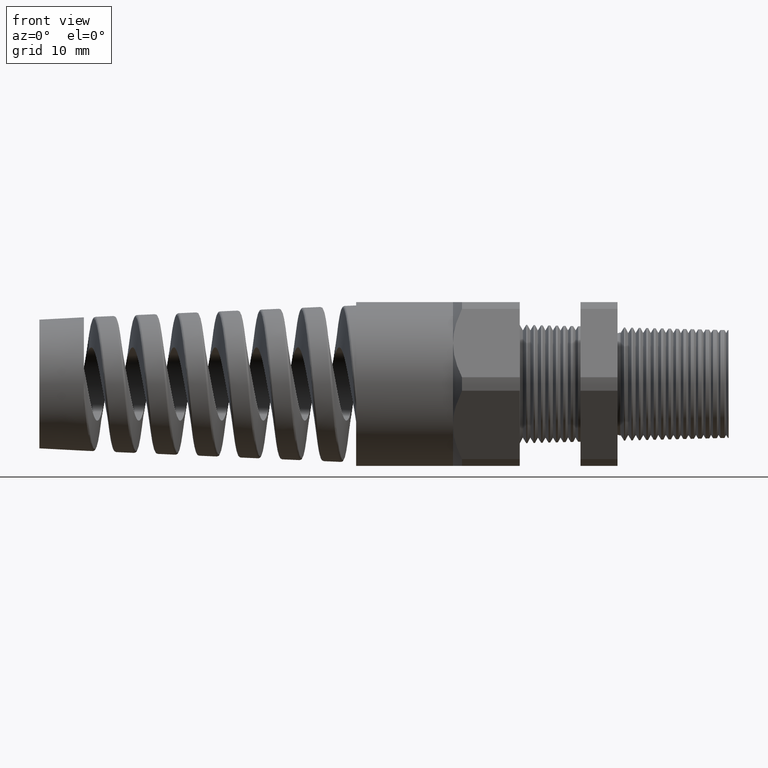
[diagram: clean part render]
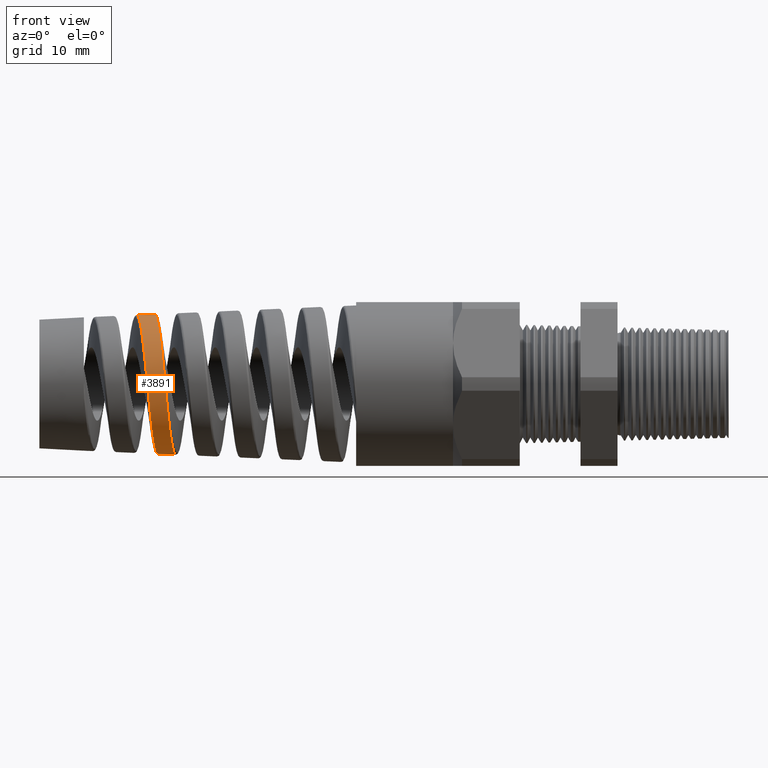
[diagram: same view with one face highlighted and labeled with its STEP entity id]
A machine part, front view. The second image highlights one B-rep face of the part: STEP entity #3891.
In plain terms, the highlighted conical surface has half-angle 2.5 deg.
Its self-contained STEP definition (entity closure, byte-faithful):
#3635 = VERTEX_POINT ( 'NONE', #14386 ) ;
#3652 = VERTEX_POINT ( 'NONE', #14419 ) ;
#3655 = EDGE_CURVE ( 'NONE', #3664, #3652, #3966, .T. ) ;
#3664 = VERTEX_POINT ( 'NONE', #3958 ) ;
#3668 = EDGE_CURVE ( 'NONE', #3635, #3671, #4012, .T. ) ;
#3671 = VERTEX_POINT ( 'NONE', #4008 ) ;
#3760 = ORIENTED_EDGE ( 'NONE', *, *, #3655, .F. ) ;
#3763 = ORIENTED_EDGE ( 'NONE', *, *, #12036, .T. ) ;
#3873 = EDGE_LOOP ( 'NONE', ( #3760, #3763, #12037, #12038 ) ) ;
#3891 = ADVANCED_FACE ( 'NONE', ( #4197 ), #4195, .T. ) ;
#3958 = CARTESIAN_POINT ( 'NONE',  ( -2.861495801255704600, 7.154155068480336400E-013, 0.3663870115404076500 ) ) ;
#3963 = DIRECTION ( 'NONE',  ( 0.9990482215818576900, 5.341834311772761000E-018, 0.04361938736533630500 ) ) ;
#3964 = VECTOR ( 'NONE', #3963, 39.37007874015748100 ) ;
#3965 = CARTESIAN_POINT ( 'NONE',  ( -1.289999999999999600, 5.327213576290984500E-017, 0.4349999999999998900 ) ) ;
#3966 = LINE ( 'NONE', #3965, #3964 ) ;
#4008 = CARTESIAN_POINT ( 'NONE',  ( -2.656960758943647700, 5.595973717578361500E-016, -0.3753172043455844700 ) ) ;
#4009 = DIRECTION ( 'NONE',  ( 0.9990482215818576900, 0.0000000000000000000, -0.04361938736533630500 ) ) ;
#4010 = VECTOR ( 'NONE', #4009, 39.37007874015748100 ) ;
#4011 = CARTESIAN_POINT ( 'NONE',  ( -1.289999999999999600, 0.0000000000000000000, -0.4349999999999998900 ) ) ;
#4012 = LINE ( 'NONE', #4011, #4010 ) ;
#4194 = AXIS2_PLACEMENT_3D ( 'NONE', #4222, #4221, #4220 ) ;
#4195 = CONICAL_SURFACE ( 'NONE', #4194, 0.4349999999999998900, 0.04363323129985854200 ) ;
#4197 = FACE_OUTER_BOUND ( 'NONE', #3873, .T. ) ;
#4220 = DIRECTION ( 'NONE',  ( 0.0000000000000000000, 0.0000000000000000000, -1.000000000000000000 ) ) ;
#4221 = DIRECTION ( 'NONE',  ( 1.000000000000000000, -0.0000000000000000000, -0.0000000000000000000 ) ) ;
#4222 = CARTESIAN_POINT ( 'NONE',  ( -1.289999999999999600, 0.0000000000000000000, 0.0000000000000000000 ) ) ;
#5265 = CARTESIAN_POINT ( 'NONE',  ( -2.770747915602111500, -0.1948358603979943300, -0.3151877148554140300 ) ) ;
#5266 = CARTESIAN_POINT ( 'NONE',  ( -2.774186545366478000, -0.2249298341201574600, -0.2950205798056346800 ) ) ;
#5267 = CARTESIAN_POINT ( 'NONE',  ( -2.776456175448985600, -0.2434917175350849200, -0.2797640778635222500 ) ) ;
#5268 = CARTESIAN_POINT ( 'NONE',  ( -2.779882802907268000, -0.2690837973965804500, -0.2541706006698406000 ) ) ;
#5269 = CARTESIAN_POINT ( 'NONE',  ( -2.781035140854073000, -0.2772742425249677400, -0.2451376651715808700 ) ) ;
#5270 = CARTESIAN_POINT ( 'NONE',  ( -2.783333390313078600, -0.2926781950646730700, -0.2263597366107085200 ) ) ;
#5271 = CARTESIAN_POINT ( 'NONE',  ( -2.784474342065694800, -0.2998632083385589000, -0.2166602569693063000 ) ) ;
#5272 = CARTESIAN_POINT ( 'NONE',  ( -2.787891567592645400, -0.3199096697037944200, -0.1866577092009769300 ) ) ;
#5273 = CARTESIAN_POINT ( 'NONE',  ( -2.790162399587702100, -0.3312767340283279100, -0.1654590542636336600 ) ) ;
#5274 = CARTESIAN_POINT ( 'NONE',  ( -2.793625311429903700, -0.3452403644999456100, -0.1318185883011236700 ) ) ;
#5275 = CARTESIAN_POINT ( 'NONE',  ( -2.794784674550151700, -0.3493524177402349600, -0.1203358504410384500 ) ) ;
#5276 = CARTESIAN_POINT ( 'NONE',  ( -2.797081733786627800, -0.3563661751303478500, -0.09724665816637058400 ) ) ;
#5277 = CARTESIAN_POINT ( 'NONE',  ( -2.798225308503656400, -0.3592925661599961600, -0.08558323064559129900 ) ) ;
#5278 = CARTESIAN_POINT ( 'NONE',  ( -2.800510091521818200, -0.3639989256173624700, -0.06202241514725637800 ) ) ;
#5279 = CARTESIAN_POINT ( 'NONE',  ( -2.801650967741250200, -0.3657789132128912400, -0.05012499870596321500 ) ) ;
#5280 = CARTESIAN_POINT ( 'NONE',  ( -2.803943348291209500, -0.3681738640876852700, -0.02609367961372205700 ) ) ;
#5281 = CARTESIAN_POINT ( 'NONE',  ( -2.805101087478020000, -0.3687870298348871500, -0.01389165841946190400 ) ) ;
#5282 = CARTESIAN_POINT ( 'NONE',  ( -2.808553610673270000, -0.3688103168499487500, 0.02249117416076407500 ) ) ;
#5283 = CARTESIAN_POINT ( 'NONE',  ( -2.810825733965141500, -0.3664555365706390100, 0.04642159747810495300 ) ) ;
#5284 = CARTESIAN_POINT ( 'NONE',  ( -2.815406759059369900, -0.3571121319136689200, 0.09363835624586676300 ) ) ;
#5285 = CARTESIAN_POINT ( 'NONE',  ( -2.817739267650365900, -0.3500010821819013500, 0.1171472933010744300 ) ) ;
#5286 = CARTESIAN_POINT ( 'NONE',  ( -2.822342034361600600, -0.3315570147500736500, 0.1616978826688049700 ) ) ;
#5287 = CARTESIAN_POINT ( 'NONE',  ( -2.824621462889489900, -0.3202421989128801900, 0.1828970200097563600 ) ) ;
#5288 = CARTESIAN_POINT ( 'NONE',  ( -2.828073160838694200, -0.3001037503978887800, 0.2130604927894367300 ) ) ;
#5289 = CARTESIAN_POINT ( 'NONE',  ( -2.829235614477089800, -0.2928167406139210400, 0.2228868307799908300 ) ) ;
#5290 = CARTESIAN_POINT ( 'NONE',  ( -2.831540510677245800, -0.2774437135026065500, 0.2416012281798667600 ) ) ;
#5291 = CARTESIAN_POINT ( 'NONE',  ( -2.832686211543703700, -0.2693439541275088300, 0.2505214782850535600 ) ) ;
#5292 = CARTESIAN_POINT ( 'NONE',  ( -2.836121729880495500, -0.2438334523247358800, 0.2759989922828046700 ) ) ;
#5293 = CARTESIAN_POINT ( 'NONE',  ( -2.838410130451646900, -0.2252233634660053600, 0.2912855820622128300 ) ) ;
#5294 = CARTESIAN_POINT ( 'NONE',  ( -2.843072507678288100, -0.1846661375024935300, 0.3183107542182486100 ) ) ;
#5295 = CARTESIAN_POINT ( 'NONE',  ( -2.845369750534951300, -0.1633865814843645200, 0.3296033629787110100 ) ) ;
#5296 = CARTESIAN_POINT ( 'NONE',  ( -2.848813767332549300, -0.1300499315247136400, 0.3433320972091241700 ) ) ;
#5297 = CARTESIAN_POINT ( 'NONE',  ( -2.849962333022176600, -0.1186986896393562400, 0.3473700038224926700 ) ) ;
#5298 = CARTESIAN_POINT ( 'NONE',  ( -2.852273209446292600, -0.09550818508399776300, 0.3543437037096132700 ) ) ;
#5299 = CARTESIAN_POINT ( 'NONE',  ( -2.853439010097355200, -0.08363169678879817100, 0.3572803422653248500 ) ) ;
#5300 = CARTESIAN_POINT ( 'NONE',  ( -2.856901117417229000, -0.04803306215833610900, 0.3642306900641886200 ) ) ;
#5301 = CARTESIAN_POINT ( 'NONE',  ( -2.859186292784778000, -0.02410922726855738500, 0.3664878468579503800 ) ) ;
#5302 = CARTESIAN_POINT ( 'NONE',  ( -2.861495801255704600, 7.154155068480336400E-013, 0.3663870115404076500 ) ) ;
#5303 = B_SPLINE_CURVE_WITH_KNOTS ( 'NONE', 3,
 ( #5302, #5301, #5300, #5299, #5298, #5297, #5296, #5295, #5294, #5293, #5292, #5291, #5290, #5289, #5288, #5287, #5286, #5285, #5284, #5283, #5282, #5281, #5280, #5279, #5278, #5277, #5276, #5275, #5274, #5273, #5272, #5271, #5270, #5269, #5268, #5267, #5266, #5265, #5346, #5345, #5344, #5343, #5342, #5341, #5340, #5339, #5338, #5337 ),
 .UNSPECIFIED., .F., .F.,
 ( 4, 2, 2, 2, 2, 2, 2, 2, 2, 2, 2, 2, 2, 2, 2, 2, 2, 2, 2, 2, 2, 2, 2, 4 ),
 ( 0.07441437654789442900, 0.07627331534617212700, 0.07720278474531097600, 0.07813225414444982500, 0.07999119294272752400, 0.08185013174100522200, 0.08277960114014407100, 0.08370907053928292000, 0.08556800933756061900, 0.08742694813583831700, 0.08928588693411601600, 0.09021535633325485100, 0.09114482573239370000, 0.09207429513153254900, 0.09300376453067138400, 0.09486270332894908300, 0.09579217272808793200, 0.09672164212722678100, 0.09858058092550448000, 0.09951005032464332900, 0.1004395197237821800, 0.1022984585220598800, 0.1032279279211987300, 0.1041573973203375600 ),
 .UNSPECIFIED. ) ;
#5306 = CARTESIAN_POINT ( 'NONE',  ( -2.727745013466824600, -0.3352738449704599800, 0.1635157735849435400 ) ) ;
#5307 = CARTESIAN_POINT ( 'NONE',  ( -2.723170824933026900, -0.3539078690607886400, 0.1185069480728030000 ) ) ;
#5308 = CARTESIAN_POINT ( 'NONE',  ( -2.720844905065487500, -0.3611047282356909500, 0.09472859285375620500 ) ) ;
#5309 = CARTESIAN_POINT ( 'NONE',  ( -2.716264365525855200, -0.3705602578963715900, 0.04694965984738019800 ) ) ;
#5310 = CARTESIAN_POINT ( 'NONE',  ( -2.713994090207154700, -0.3729364931907874800, 0.02276115389516955200 ) ) ;
#5311 = CARTESIAN_POINT ( 'NONE',  ( -2.710555691924849200, -0.3729164904195216800, -0.01397138756176598100 ) ) ;
#5312 = CARTESIAN_POINT ( 'NONE',  ( -2.709400097903389000, -0.3722982838959545400, -0.02632640449807722300 ) ) ;
#5313 = CARTESIAN_POINT ( 'NONE',  ( -2.707113519344943200, -0.3698748979147987200, -0.05065711639808107000 ) ) ;
#5314 = CARTESIAN_POINT ( 'NONE',  ( -2.705976664530537900, -0.3680733818535009100, -0.06269567287291892600 ) ) ;
#5315 = CARTESIAN_POINT ( 'NONE',  ( -2.702566979197425800, -0.3609334181750495400, -0.09843652771250033200 ) ) ;
#5316 = CARTESIAN_POINT ( 'NONE',  ( -2.700286744542923500, -0.3538428718973376500, -0.1218478039224828300 ) ) ;
#5317 = CARTESIAN_POINT ( 'NONE',  ( -2.695673300443827400, -0.3349887236293154200, -0.1672862730259803700 ) ) ;
#5318 = CARTESIAN_POINT ( 'NONE',  ( -2.693399165846702000, -0.3234848805171713400, -0.1887324041355051800 ) ) ;
#5319 = CARTESIAN_POINT ( 'NONE',  ( -2.689988722979276900, -0.3032249581109116000, -0.2190548681217996100 ) ) ;
#5320 = CARTESIAN_POINT ( 'NONE',  ( -2.688851367292649700, -0.2959673857264518700, -0.2288522977288527100 ) ) ;
#5321 = CARTESIAN_POINT ( 'NONE',  ( -2.686563160332584600, -0.2804189339573521200, -0.2478104379836602600 ) ) ;
#5322 = CARTESIAN_POINT ( 'NONE',  ( -2.685412005108626800, -0.2721194626135457500, -0.2569674394851273500 ) ) ;
#5323 = CARTESIAN_POINT ( 'NONE',  ( -2.681995002774160100, -0.2462126379234362600, -0.2828775967593088500 ) ) ;
#5324 = CARTESIAN_POINT ( 'NONE',  ( -2.679739509508144200, -0.2274395235653170500, -0.2983015036842955900 ) ) ;
#5325 = CARTESIAN_POINT ( 'NONE',  ( -2.676320691921938000, -0.1970429209117294000, -0.3186723737563723600 ) ) ;
#5326 = CARTESIAN_POINT ( 'NONE',  ( -2.675169869171356100, -0.1864839746403585700, -0.3250253122445768700 ) ) ;
#5327 = CARTESIAN_POINT ( 'NONE',  ( -2.672872143421564300, -0.1648343520122565200, -0.3366341005331420200 ) ) ;
#5328 = CARTESIAN_POINT ( 'NONE',  ( -2.671731276437669900, -0.1538040720508016800, -0.3418648675154590300 ) ) ;
#5329 = CARTESIAN_POINT ( 'NONE',  ( -2.668319587807884500, -0.1201159010965292800, -0.3558860985062189400 ) ) ;
#5330 = CARTESIAN_POINT ( 'NONE',  ( -2.666063614885217700, -0.09686582896275232300, -0.3630210245505503500 ) ) ;
#5331 = CARTESIAN_POINT ( 'NONE',  ( -2.662637763156301000, -0.06077891997676190100, -0.3703154589635490000 ) ) ;
#5332 = CARTESIAN_POINT ( 'NONE',  ( -2.661491406695897700, -0.04857602491376381700, -0.3721610870242340600 ) ) ;
#5333 = CARTESIAN_POINT ( 'NONE',  ( -2.659221248049546300, -0.02429228460453973200, -0.3746301659534527200 ) ) ;
#5334 = CARTESIAN_POINT ( 'NONE',  ( -2.658091358158313000, -0.01214737019475836300, -0.3752678413178206500 ) ) ;
#5335 = CARTESIAN_POINT ( 'NONE',  ( -2.656960758943647700, 5.595973717578361500E-016, -0.3753172043455844700 ) ) ;
#5336 = B_SPLINE_CURVE_WITH_KNOTS ( 'NONE', 3,
 ( #5335, #5334, #5333, #5332, #5331, #5330, #5329, #5328, #5327, #5326, #5325, #5324, #5323, #5322, #5321, #5320, #5319, #5318, #5317, #5316, #5315, #5314, #5313, #5312, #5311, #5310, #5309, #5308, #5307, #5306, #5388, #5387, #5386, #5385, #5384, #5383, #5382, #5381, #5380, #5379, #5378, #5377, #5376, #5375, #5374, #5373 ),
 .UNSPECIFIED., .F., .F.,
 ( 4, 2, 2, 2, 2, 2, 2, 2, 2, 2, 2, 2, 2, 2, 2, 2, 2, 2, 2, 2, 2, 2, 4 ),
 ( 0.2754043783703665800, 0.2763428494384969600, 0.2772813205066274000, 0.2791582626428882300, 0.2800967337110186200, 0.2810352047791490100, 0.2829121469154098300, 0.2838506179835402200, 0.2847890890516706600, 0.2866660311879314900, 0.2885429733241923200, 0.2894814443923227100, 0.2904199154604530900, 0.2922968575967139200, 0.2941737997329747500, 0.2960507418692355800, 0.2969892129373659700, 0.2979276840054964100, 0.2998046261417572400, 0.3016815682780180100, 0.3026200393461484500, 0.3035585104142788400, 0.3054354525505396700 ),
 .UNSPECIFIED. ) ;
#5337 = CARTESIAN_POINT ( 'NONE',  ( -2.751341904036873800, -2.797239544413508600E-016, -0.3711964345580290900 ) ) ;
#5338 = CARTESIAN_POINT ( 'NONE',  ( -2.752478791709269700, -0.01201363857648863800, -0.3711467969702710300 ) ) ;
#5339 = CARTESIAN_POINT ( 'NONE',  ( -2.753613601263342300, -0.02401829909353722000, -0.3705153926784118800 ) ) ;
#5340 = CARTESIAN_POINT ( 'NONE',  ( -2.755890680965042100, -0.04800835472433918200, -0.3680760167373061700 ) ) ;
#5341 = CARTESIAN_POINT ( 'NONE',  ( -2.757037485632961400, -0.06003905385299825000, -0.3662585916322333400 ) ) ;
#5342 = CARTESIAN_POINT ( 'NONE',  ( -2.760479155370024500, -0.09578925495234212600, -0.3590353919986826200 ) ) ;
#5343 = CARTESIAN_POINT ( 'NONE',  ( -2.762739370269609900, -0.1187944902276741000, -0.3519710886304896500 ) ) ;
#5344 = CARTESIAN_POINT ( 'NONE',  ( -2.766150767254701700, -0.1520933684316240800, -0.3381114501394931200 ) ) ;
#5345 = CARTESIAN_POINT ( 'NONE',  ( -2.767291268693897100, -0.1629900799737353200, -0.3329438313412514900 ) ) ;
#5346 = CARTESIAN_POINT ( 'NONE',  ( -2.769590081033034500, -0.1843659240463359200, -0.3214843762725935700 ) ) ;
#5373 = CARTESIAN_POINT ( 'NONE',  ( -2.766787771096090400, 5.080642906265161400E-013, 0.3705220534381842300 ) ) ;
#5374 = CARTESIAN_POINT ( 'NONE',  ( -2.764479797478359000, -0.02440406089840963700, 0.3706228217425758800 ) ) ;
#5375 = CARTESIAN_POINT ( 'NONE',  ( -2.762193912553679200, -0.04859156837706073200, 0.3683346881772975900 ) ) ;
#5376 = CARTESIAN_POINT ( 'NONE',  ( -2.758743517674650200, -0.08454242502496095400, 0.3613151568368784300 ) ) ;
#5377 = CARTESIAN_POINT ( 'NONE',  ( -2.757582457943104500, -0.09653630533166363000, 0.3583513627186533700 ) ) ;
#5378 = CARTESIAN_POINT ( 'NONE',  ( -2.755275805402551500, -0.1200227582216386300, 0.3512893636729158000 ) ) ;
#5379 = CARTESIAN_POINT ( 'NONE',  ( -2.754130741007427400, -0.1315116304206737600, 0.3472015092993582200 ) ) ;
#5380 = CARTESIAN_POINT ( 'NONE',  ( -2.750701039263298200, -0.1652334400558005100, 0.3333115930449085400 ) ) ;
#5381 = CARTESIAN_POINT ( 'NONE',  ( -2.748421736978796700, -0.1867287551996173500, 0.3218988898718695400 ) ) ;
#5382 = CARTESIAN_POINT ( 'NONE',  ( -2.743784586126693600, -0.2276714437888071900, 0.2946228712205026200 ) ) ;
#5383 = CARTESIAN_POINT ( 'NONE',  ( -2.741486578668020700, -0.2465743316574887700, 0.2791019535456568100 ) ) ;
#5384 = CARTESIAN_POINT ( 'NONE',  ( -2.738054580638296100, -0.2723621299688143100, 0.2533461734939618200 ) ) ;
#5385 = CARTESIAN_POINT ( 'NONE',  ( -2.736911921097648500, -0.2805451983684453800, 0.2443334132145327800 ) ) ;
#5386 = CARTESIAN_POINT ( 'NONE',  ( -2.734615695152864400, -0.2960690443734465500, 0.2254375997238836600 ) ) ;
#5387 = CARTESIAN_POINT ( 'NONE',  ( -2.733456574140891200, -0.3034402818024253300, 0.2155016975887679400 ) ) ;
#5388 = CARTESIAN_POINT ( 'NONE',  ( -2.730012484759264200, -0.3238339489115558100, 0.1849595106872655700 ) ) ;
#12036 = EDGE_CURVE ( 'NONE', #3664, #3635, #5303, .T. ) ;
#12037 = ORIENTED_EDGE ( 'NONE', *, *, #3668, .T. ) ;
#12038 = ORIENTED_EDGE ( 'NONE', *, *, #12039, .T. ) ;
#12039 = EDGE_CURVE ( 'NONE', #3671, #3652, #5336, .T. ) ;
#14386 = CARTESIAN_POINT ( 'NONE',  ( -2.751341904036873800, -2.797239544413508600E-016, -0.3711964345580290900 ) ) ;
#14419 = CARTESIAN_POINT ( 'NONE',  ( -2.766787771096090400, 5.080642906265161400E-013, 0.3705220534381842300 ) ) ;